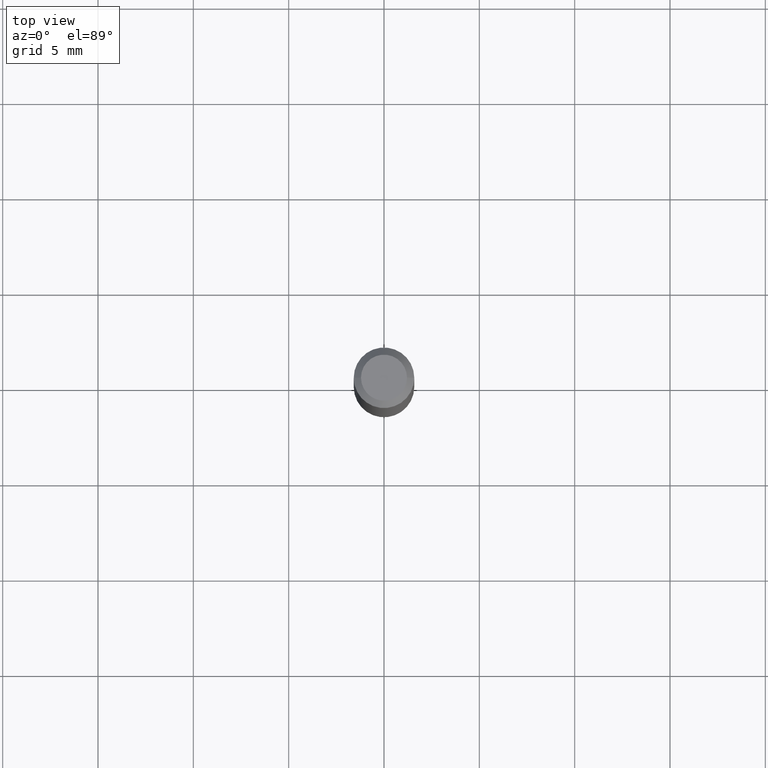
[diagram: clean part render]
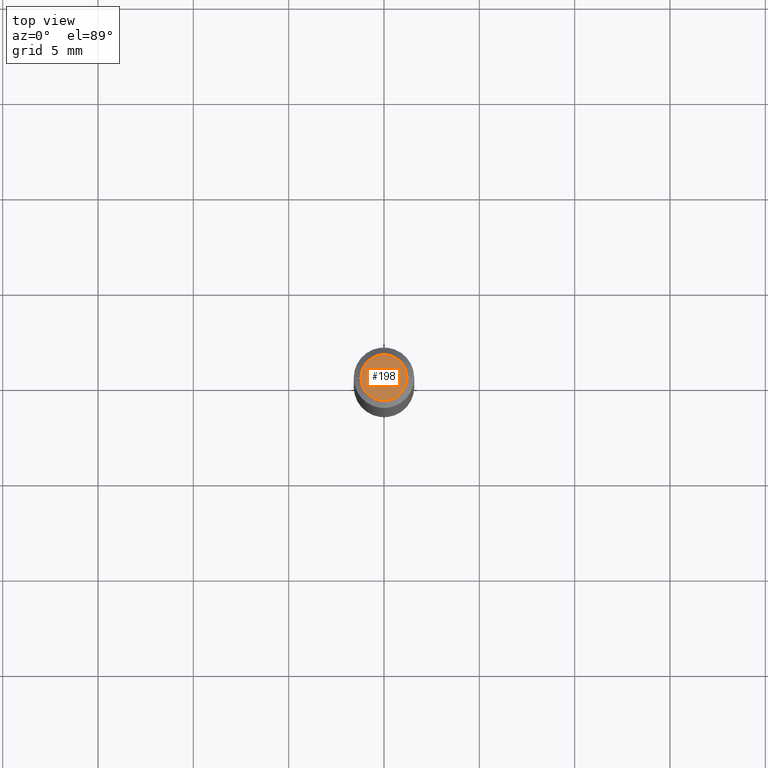
[diagram: same view with one face highlighted and labeled with its STEP entity id]
A machine part, top view. The second image highlights one B-rep face of the part: STEP entity #198.
In plain terms, the highlighted planar face has unit normal (0, -0, -1).
Its self-contained STEP definition (entity closure, byte-faithful):
#10 = CARTESIAN_POINT ( 'NONE',  ( 0.04749999999999999362, -4.035134999187590949E-16, -7.359664656873688728E-16 ) ) ;
#11 = ORIENTED_EDGE ( 'NONE', *, *, #345, .T. ) ;
#13 = CARTESIAN_POINT ( 'NONE',  ( 1.799783034236790585E-44, -2.569613180961801607E-30, -7.359664656873714366E-16 ) ) ;
#14 = AXIS2_PLACEMENT_3D ( 'NONE', #397, #77, #325 ) ;
#45 = PLANE ( 'NONE',  #14 ) ;
#77 = DIRECTION ( 'NONE',  ( 2.438088387897960049E-29, -3.491481338843145188E-15, -1.000000000000000000 ) ) ;
#79 = CARTESIAN_POINT ( 'NONE',  ( -0.04749999999999999362, 3.578768372314198180E-16, -7.359664656873739018E-16 ) ) ;
#81 = EDGE_CURVE ( 'NONE', #222, #314, #347, .T. ) ;
#198 = ADVANCED_FACE ( 'NONE', ( #462 ), #45, .F. ) ;
#206 = CARTESIAN_POINT ( 'NONE',  ( 1.799783034236790585E-44, -2.569613180961801607E-30, -7.359664656873714366E-16 ) ) ;
#222 = VERTEX_POINT ( 'NONE', #79 ) ;
#226 = DIRECTION ( 'NONE',  ( -2.445468806185136597E-29, 3.491481338843145583E-15, 1.000000000000000000 ) ) ;
#230 = ORIENTED_EDGE ( 'NONE', *, *, #81, .T. ) ;
#270 = AXIS2_PLACEMENT_3D ( 'NONE', #13, #226, #409 ) ;
#278 = DIRECTION ( 'NONE',  ( -2.445468806185136597E-29, 3.491481338843145583E-15, 1.000000000000000000 ) ) ;
#314 = VERTEX_POINT ( 'NONE', #10 ) ;
#325 = DIRECTION ( 'NONE',  ( -1.000000000000000000, 6.982962677686265922E-15, -4.876176775795935793E-29 ) ) ;
#345 = EDGE_CURVE ( 'NONE', #314, #222, #428, .T. ) ;
#347 = CIRCLE ( 'NONE', #377, 0.04749999999999999362 ) ;
#377 = AXIS2_PLACEMENT_3D ( 'NONE', #206, #278, #416 ) ;
#397 = CARTESIAN_POINT ( 'NONE',  ( 3.316907271900976096E-16, 0.04749999999999999362, -5.338285964387351640E-16 ) ) ;
#409 = DIRECTION ( 'NONE',  ( 1.000000000000000000, -6.982962677686267499E-15, 4.852736867747366768E-29 ) ) ;
#416 = DIRECTION ( 'NONE',  ( 1.000000000000000000, -6.982962677686267499E-15, 4.852736867747366768E-29 ) ) ;
#428 = CIRCLE ( 'NONE', #270, 0.04749999999999999362 ) ;
#445 = EDGE_LOOP ( 'NONE', ( #230, #11 ) ) ;
#462 = FACE_OUTER_BOUND ( 'NONE', #445, .T. ) ;